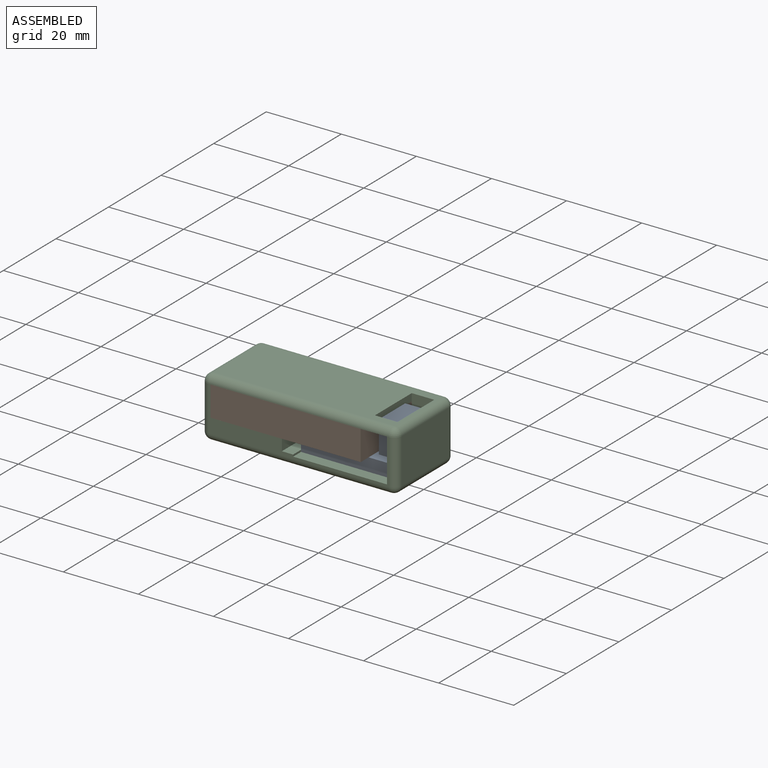
[diagram: assembled view]
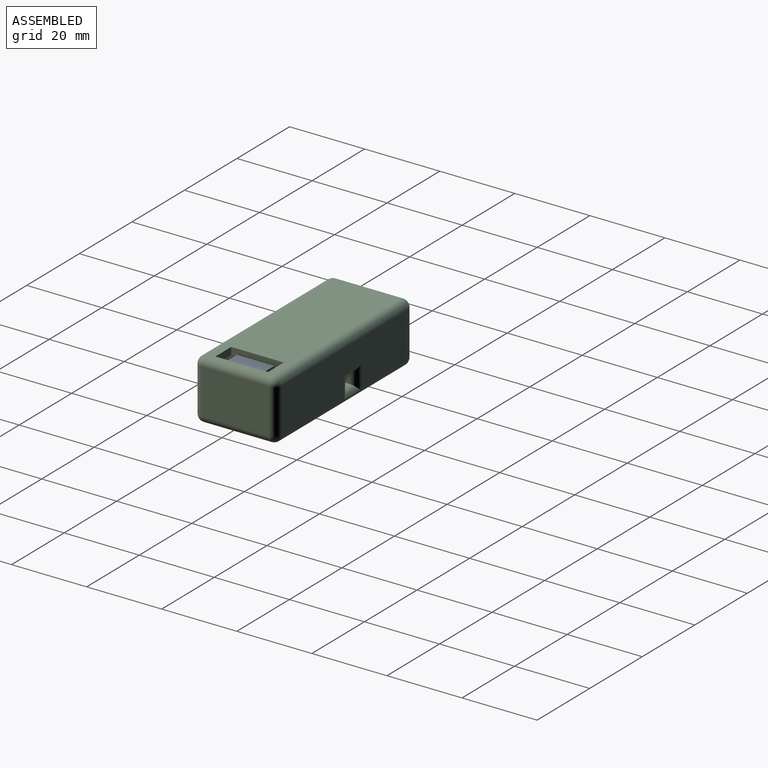
[diagram: assembled view, second angle]
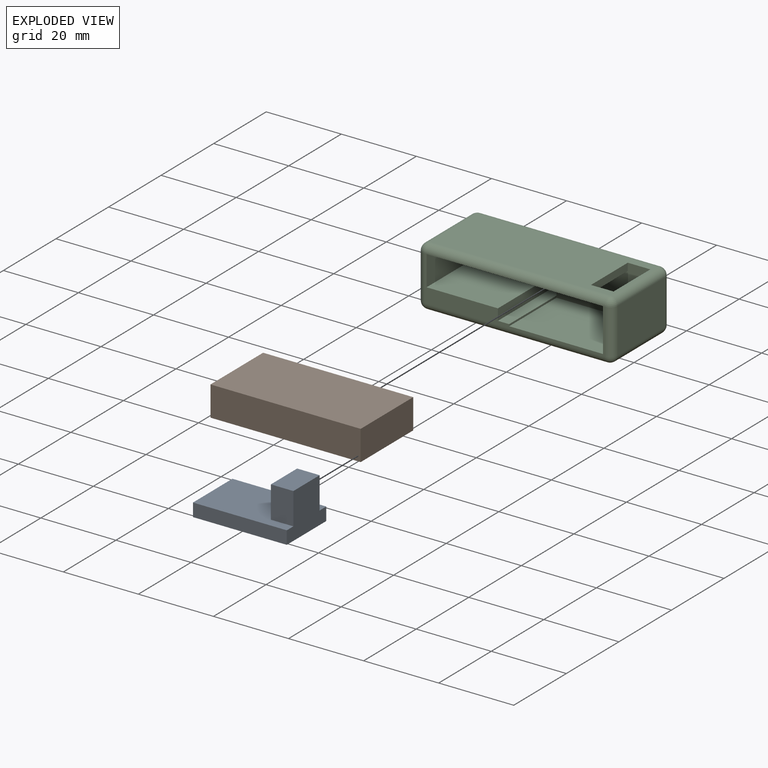
[diagram: exploded view]
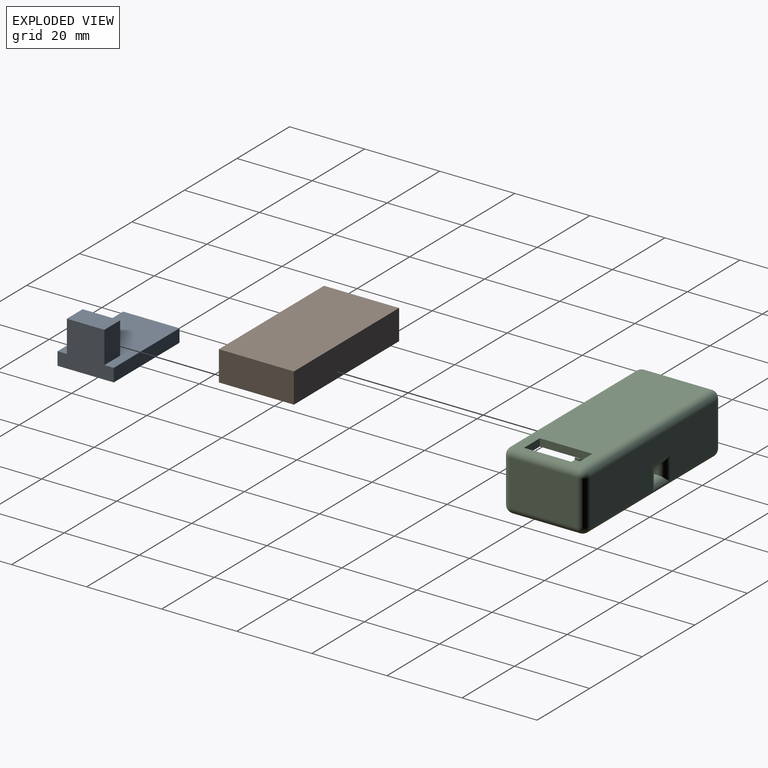
[diagram: exploded view, second angle]
ASSEMBLY  parts=3 mates=2
PART A: 10 faces, bbox 25x15x12 mm
  f0: plane 25x15mm, normal (0,0,1), area 315mm2, adj f1,f2,f3,f4,f6,f7,f8
  f1: plane 25x3.5mm, normal (0,-1,0), area 87.5mm2, adj f0,f2,f4,f5
  f2: plane 15x12mm, normal (1,0,0), area 137.5mm2, adj f0,f1,f3,f5,f6,f7,f9
  f3: plane 25x3.5mm, normal (0,1,0), area 87.5mm2, adj f0,f2,f4,f5
  f4: plane 15x3.5mm, normal (-1,0,0), area 52.5mm2, adj f0,f1,f3,f5
  f5: plane 25x15mm, normal (0,0,-1), area 375mm2, adj f1,f2,f3,f4
  f6: plane 8.5x6mm, normal (0,-1,0), area 51mm2, adj f0,f2,f8,f9
  f7: plane 8.5x6mm, normal (0,1,0), area 51mm2, adj f0,f2,f8,f9
  f8: plane 10x8.5mm, normal (-1,0,0), area 85mm2, adj f0,f6,f7,f9
  f9: plane 10x6mm, normal (0,0,1), area 60mm2, adj f2,f6,f7,f8
PART B: 6 faces, bbox 40x20x8 mm
  f0: plane 40x8mm, normal (0,-1,0), area 320mm2, adj f1,f3,f4,f5
  f1: plane 20x8mm, normal (1,0,0), area 160mm2, adj f0,f2,f4,f5
  f2: plane 40x8mm, normal (0,1,0), area 320mm2, adj f1,f3,f4,f5
  f3: plane 20x8mm, normal (-1,0,0), area 160mm2, adj f0,f2,f4,f5
  f4: plane 40x20mm, normal (0,0,1), area 800mm2, adj f0,f1,f2,f3
  f5: plane 40x20mm, normal (0,0,-1), area 800mm2, adj f0,f1,f2,f3
PART C: 45 faces, bbox 52x22x16 mm
  f0: plane 18x13.5mm, normal (-1,0,0), area 235mm2, adj f3,f4,f11,f15,f16,f20
  f1: plane 14x2mm, normal (1,0,0), area 28mm2, adj f4,f11,f16,f20
  f2: plane 20x19mm, normal (0,0,1), area 380mm2, adj f3,f12,f13,f17
  f3: plane 48x12mm, normal (0,-1,0), area 103.5mm2, adj f0,f2,f12,f14,f15,f17,f18,f21
  f4: plane 48x18mm, normal (0,0,1), area 780mm2, adj f0,f1,f16,f20,f21,f24,f28,f29
  f5: plane 19x2mm, normal (0,0,1), area 38mm2, adj f6,f13,f16,f19
  f6: plane 8x2mm, normal (-1,0,0), area 16mm2, adj f5,f11,f13,f16
  f7: plane 18x12mm, normal (1,0,0), area 216mm2, adj f27,f28,f36,f37
  f8: plane 48x12mm, normal (0,1,0), area 534mm2, adj f29,f34,f37,f40,f41,f43,f44
  f9: plane 18x12mm, normal (-1,0,0), area 216mm2, adj f24,f25,f34,f35
  f10: plane 48x18mm, normal (0,0,-1), area 864mm2, adj f26,f35,f36,f41
  f11: plane 47x20mm, normal (0,0,-1), area 844mm2, adj f0,f1,f6,f12,f13,f20,f21
  f12: plane 20x8mm, normal (1,0,0), area 160mm2, adj f2,f3,f11,f13
  f13: plane 41x8mm, normal (0,-1,0), area 328mm2, adj f2,f5,f6,f11,f12,f43
  f14: plane 18x0.5mm, normal (1,0,0), area 9mm2, adj f3,f15,f16,f18
  f15: plane 25x18mm, normal (0,0,1), area 450mm2, adj f0,f3,f14,f16
  f16: plane 25x13.5mm, normal (0,-1,0), area 147.5mm2, adj f0,f1,f4,f5,f6,f14,f15,f19
  f17: plane 20x3mm, normal (1,0,0), area 60mm2, adj f2,f3,f18,f44
  f18: plane 20x3mm, normal (0,0,1), area 60mm2, adj f3,f14,f17,f19,f42
  f19: plane 3x2mm, normal (-1,0,0), area 6mm2, adj f5,f16,f18,f40
  f20: plane 6x2mm, normal (0,1,0), area 12mm2, adj f0,f1,f4,f11
  f21: cylinder r=2mm len=48mm, axis (-1,0,0), area 150.8mm2, adj f3,f4,f11,f22,f23
  f22: sphere r=2mm, area 6.3mm2, adj f21,f24,f25
  f23: sphere r=2mm, area 6.3mm2, adj f21,f27,f28
  f24: cylinder r=2mm len=18mm, axis (0,1,0), area 56.5mm2, adj f4,f9,f22,f30
  f25: cylinder r=2mm len=12mm, axis (0,0,-1), area 37.7mm2, adj f3,f9,f22,f31
  f26: cylinder r=2mm len=48mm, axis (1,0,0), area 150.8mm2, adj f3,f10,f31,f32
  f27: cylinder r=2mm len=12mm, axis (0,0,1), area 37.7mm2, adj f3,f7,f23,f32
  f28: cylinder r=2mm len=18mm, axis (0,-1,0), area 56.5mm2, adj f4,f7,f23,f33
  f29: cylinder r=2mm len=48mm, axis (1,0,0), area 150.8mm2, adj f4,f8,f30,f33
  f30: sphere r=2mm, area 6.3mm2, adj f24,f29,f34
  f31: sphere r=2mm, area 6.3mm2, adj f25,f26,f35
  f32: sphere r=2mm, area 6.3mm2, adj f26,f27,f36
  f33: sphere r=2mm, area 6.3mm2, adj f28,f29,f37
  f34: cylinder r=2mm len=12mm, axis (0,0,1), area 37.7mm2, adj f8,f9,f30,f38
  f35: cylinder r=2mm len=18mm, axis (0,-1,0), area 56.5mm2, adj f9,f10,f31,f38
  f36: cylinder r=2mm len=18mm, axis (0,1,0), area 56.5mm2, adj f7,f10,f32,f39
  f37: cylinder r=2mm len=12mm, axis (0,0,-1), area 37.7mm2, adj f7,f8,f33,f39
  f38: sphere r=2mm, area 6.3mm2, adj f34,f35,f41
  f39: sphere r=2mm, area 6.3mm2, adj f36,f37,f41
  f40: cylinder r=2mm len=6.5mm, axis (0,0,-1), area 13.7mm2, adj f8,f19,f41,f42,f43
  f41: cylinder r=2mm len=48mm, axis (-1,0,0), area 147.5mm2, adj f8,f10,f38,f39,f40,f42,f44
  f42: cylinder r=2mm len=6mm, axis (-1,0,0), area 10.7mm2, adj f18,f40,f41,f44
  f43: cylinder r=2mm len=7mm, axis (1,0,0), area 14mm2, adj f8,f13,f40,f44
  f44: cylinder r=2mm len=6.5mm, axis (0,0,1), area 13.7mm2, adj f8,f17,f41,f42,f43
PLACE A t=(23.6,2.08,-19.57)mm
PLACE B t=(9.1,1.58,-16.07)mm
PLACE C t=(12.6,2.58,-22.07)mm
MATE fastened C.f13 <-> B.f2  axis (0,-1,0) through (-10.9,11.58,-16.07)mm
MATE fastened C.f16 <-> A.f3  axis (0,-1,0) through (36.1,9.58,-19.57)mm
